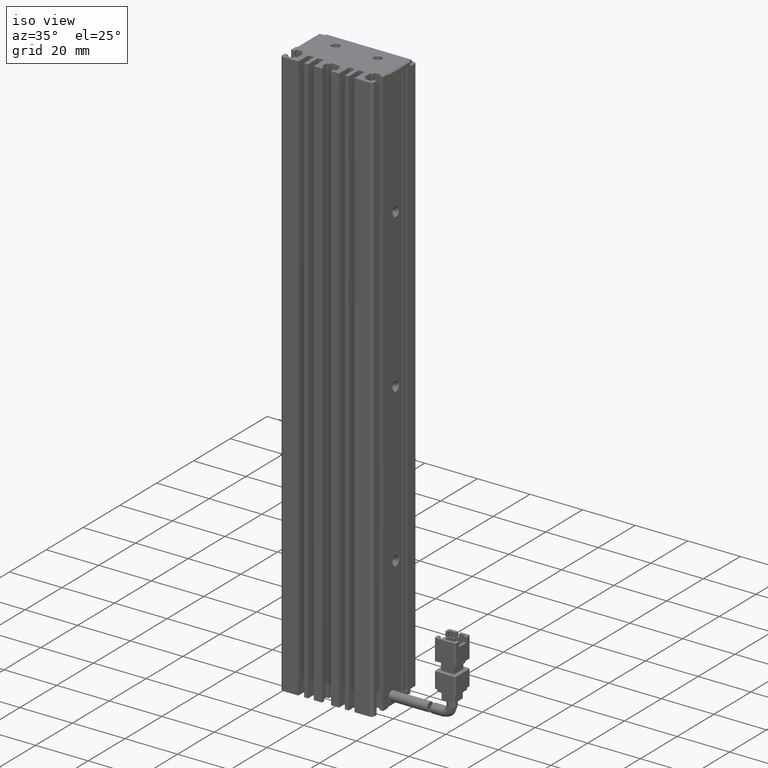
[diagram: clean part render]
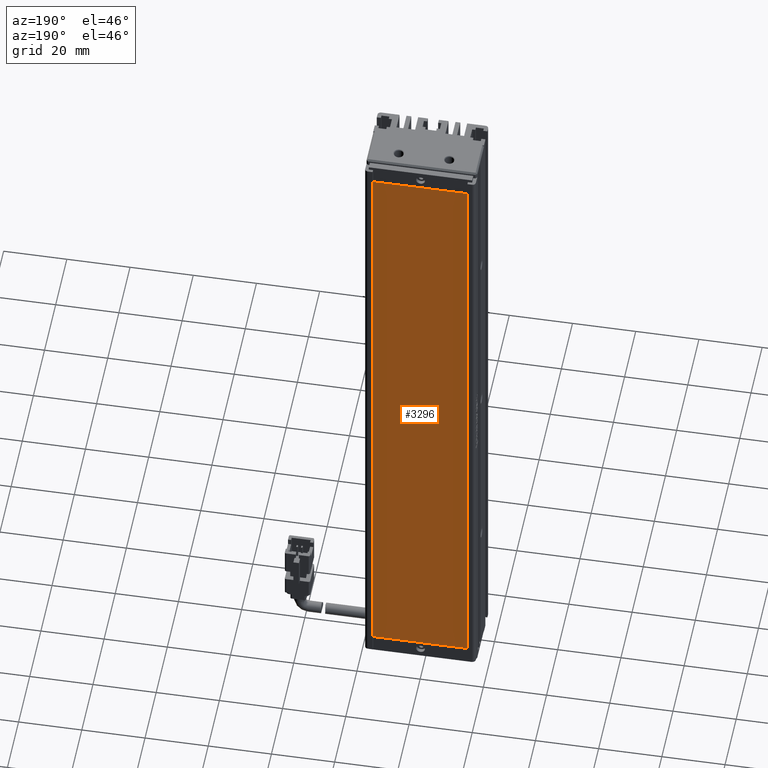
[diagram: tour spotlight — one face highlighted and labeled with its STEP entity id]
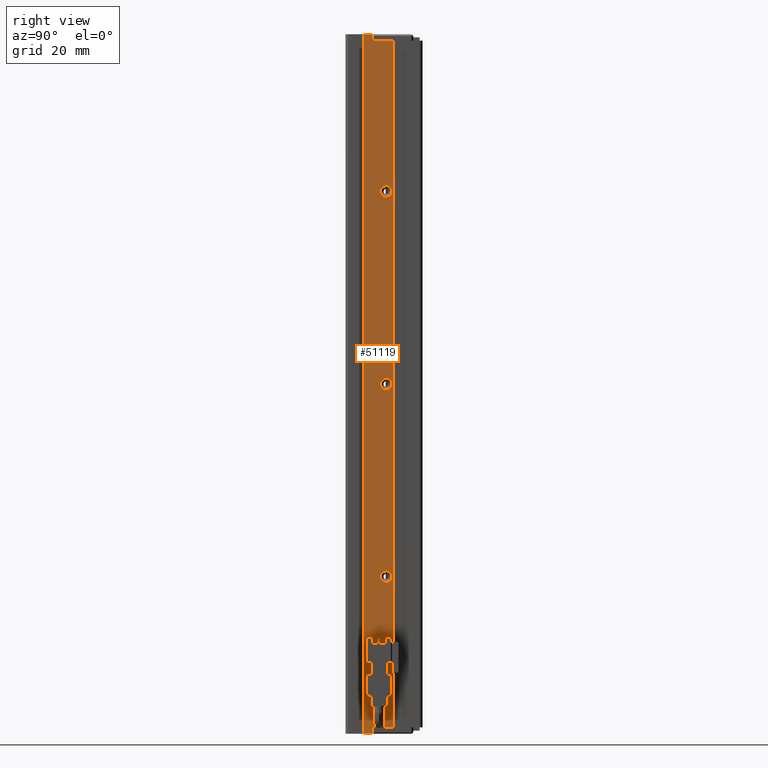
[diagram: tour spotlight — one face highlighted and labeled with its STEP entity id]
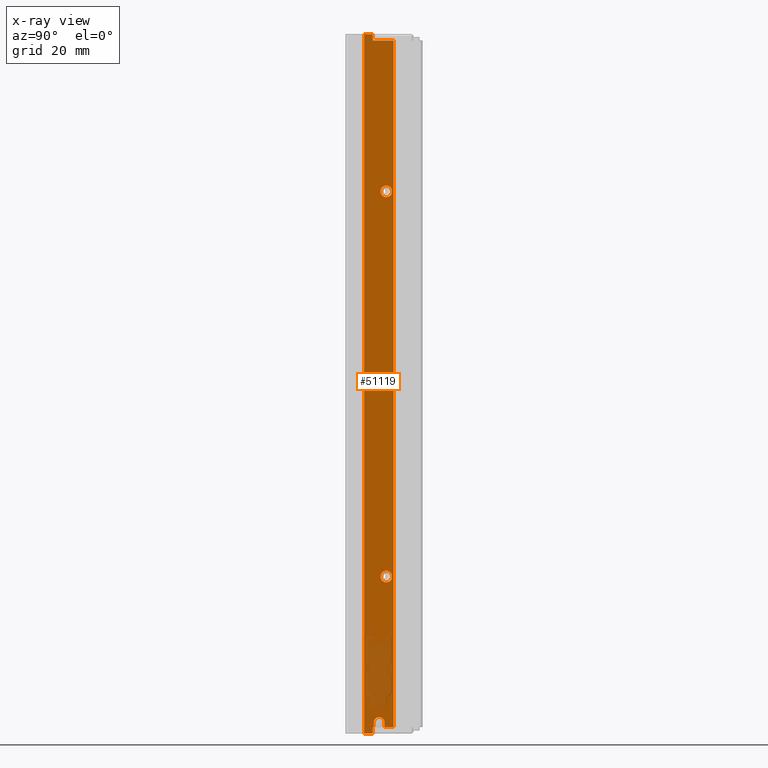
[diagram: x-ray of the same camera — body ghosted, this tour face saturated]
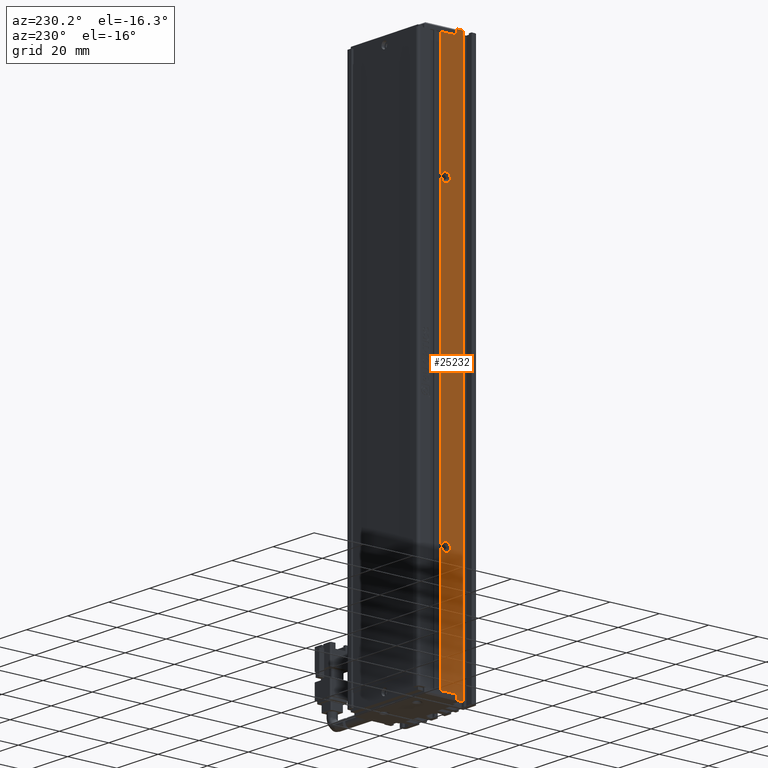
[diagram: tour spotlight — one face highlighted and labeled with its STEP entity id]
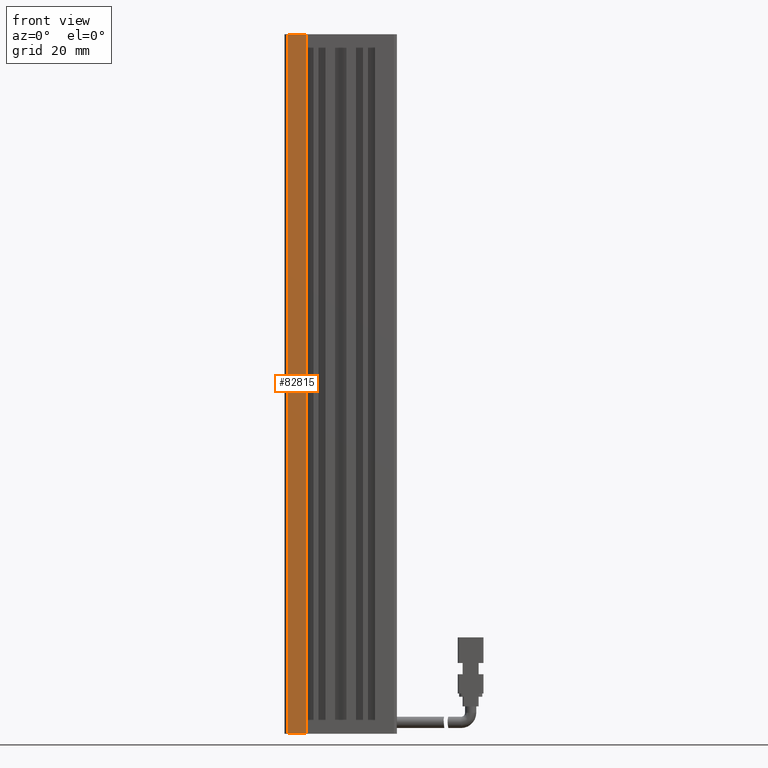
[diagram: tour spotlight — one face highlighted and labeled with its STEP entity id]
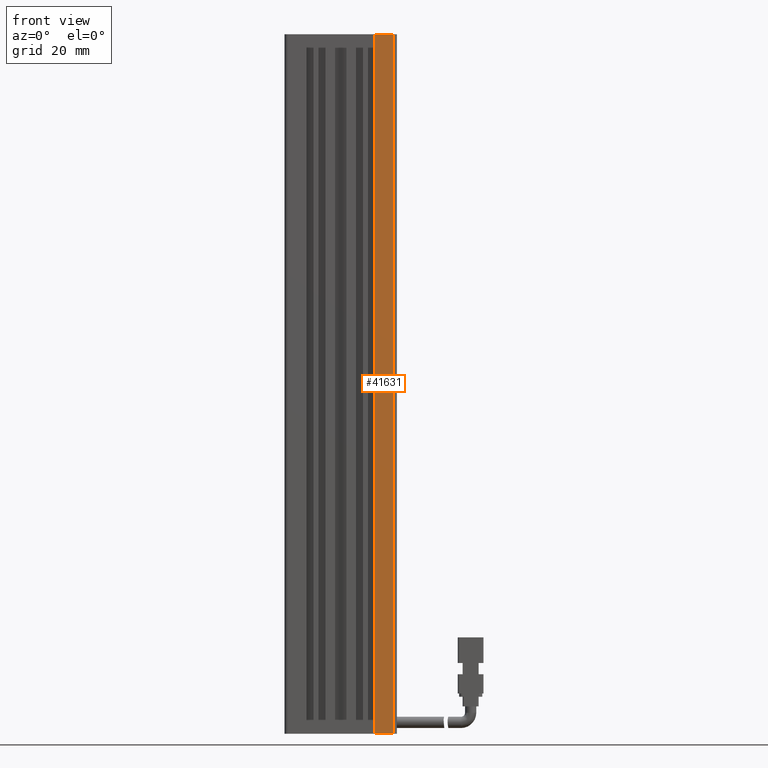
[diagram: tour spotlight — one face highlighted and labeled with its STEP entity id]
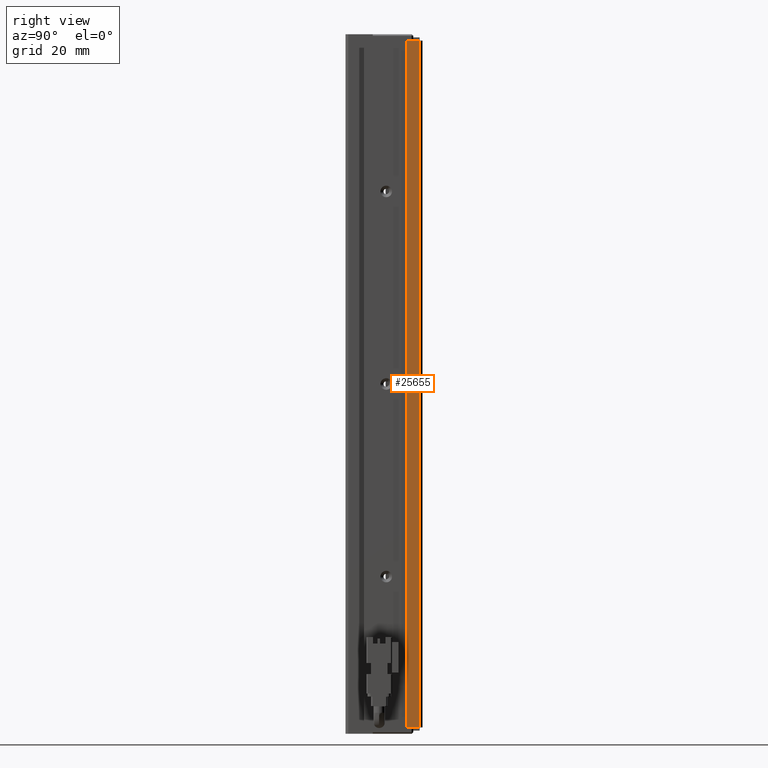
[diagram: tour spotlight — one face highlighted and labeled with its STEP entity id]
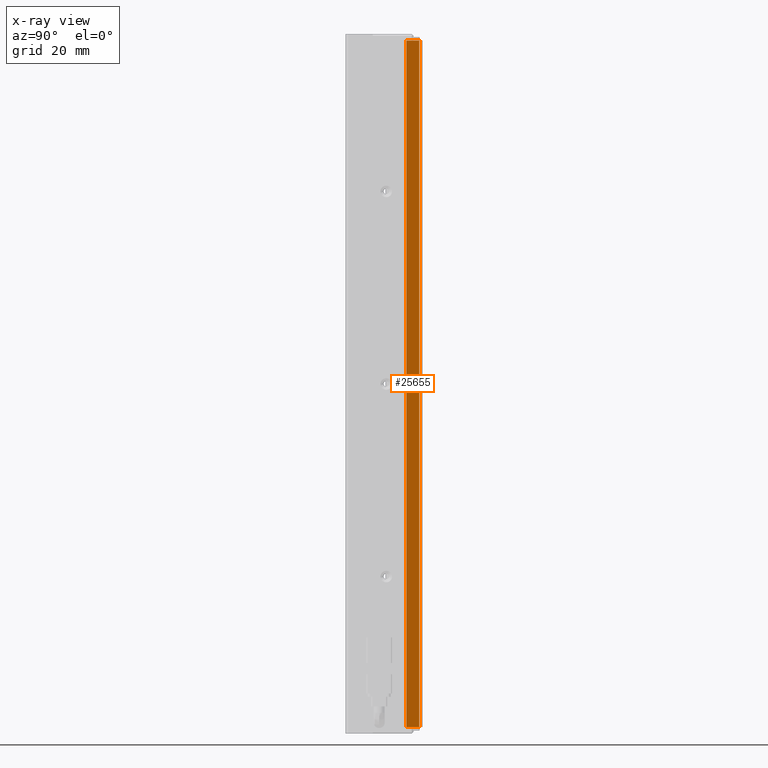
[diagram: x-ray of the same camera — body ghosted, this tour face saturated]
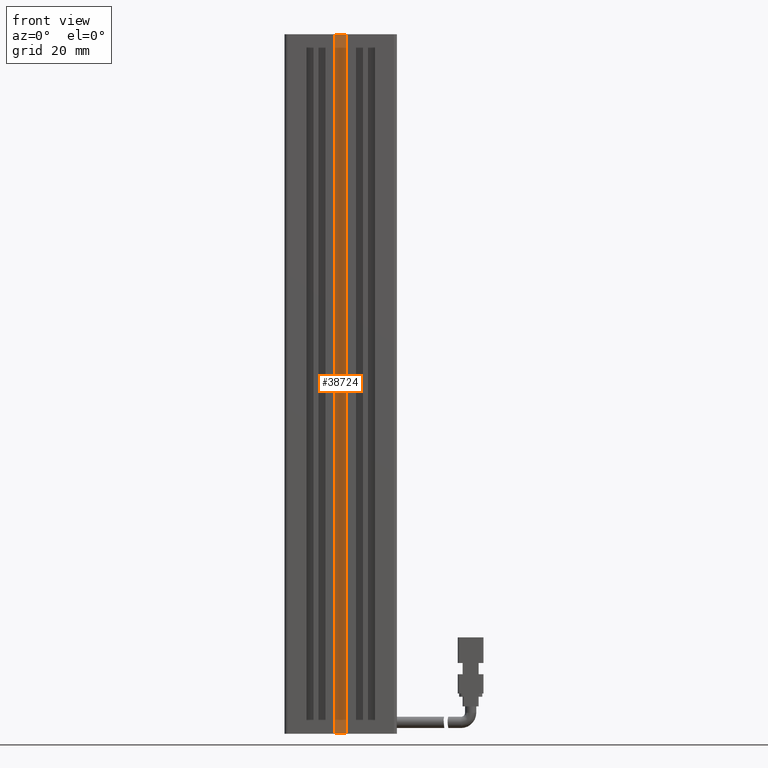
[diagram: tour spotlight — one face highlighted and labeled with its STEP entity id]
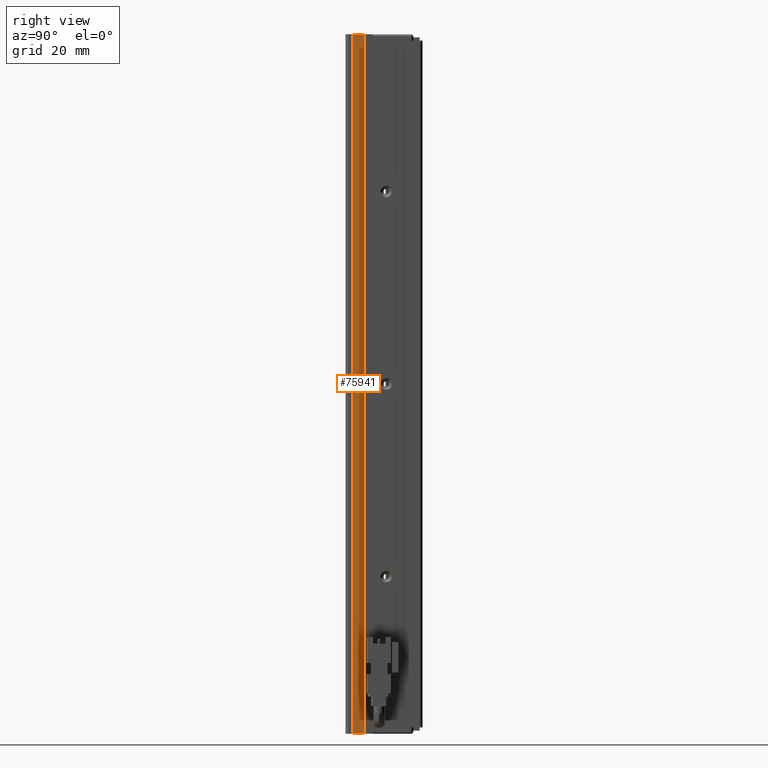
[diagram: tour spotlight — one face highlighted and labeled with its STEP entity id]
A machine part: a face-by-face anatomy tour. The part has 1974 B-rep faces; the first image is the clean iso view, then the 8 largest visible faces are spotlighted one at a time (largest first), each with its STEP entity span.

Face 1 — auxiliary view, entity #3296. In plain terms, the highlighted planar face has unit normal (0, 1, 0).
Definition (entity closure, byte-faithful):
#2015 = EDGE_CURVE ( 'NONE', #41204, #73764, #9818, .T. ) ;
#3296 = ADVANCED_FACE ( 'NONE', ( #42817 ), #13393, .T. ) ;
#4080 = VERTEX_POINT ( 'NONE', #40497 ) ;
#5159 = DIRECTION ( 'NONE',  ( -1.000000000000000000, 0.0000000000000000000, 0.0000000000000000000 ) ) ;
#5628 = LINE ( 'NONE', #34160, #54917 ) ;
#6965 = EDGE_CURVE ( 'NONE', #21765, #41204, #29712, .T. ) ;
#7059 = EDGE_CURVE ( 'NONE', #23355, #21765, #5628, .T. ) ;
#8802 = CARTESIAN_POINT ( 'NONE',  ( 55.92537974683542500, 34.29073232304837400, -217.0000000000000000 ) ) ;
#9818 = LINE ( 'NONE', #45320, #36031 ) ;
#13286 = ORIENTED_EDGE ( 'NONE', *, *, #82121, .T. ) ;
#13393 = PLANE ( 'NONE',  #48536 ) ;
#19254 = EDGE_LOOP ( 'NONE', ( #20772, #55169, #63044, #34372, #13286 ) ) ;
#20772 = ORIENTED_EDGE ( 'NONE', *, *, #25126, .T. ) ;
#21765 = VERTEX_POINT ( 'NONE', #8802 ) ;
#23355 = VERTEX_POINT ( 'NONE', #39516 ) ;
#24402 = DIRECTION ( 'NONE',  ( 0.0000000000000000000, 0.0000000000000000000, 1.000000000000000000 ) ) ;
#25126 = EDGE_CURVE ( 'NONE', #4080, #23355, #65663, .T. ) ;
#29712 = LINE ( 'NONE', #53248, #34128 ) ;
#34128 = VECTOR ( 'NONE', #5159, 1000.000000000000000 ) ;
#34160 = CARTESIAN_POINT ( 'NONE',  ( 55.92537974683542500, 34.29073232304837400, -115.0000000000000000 ) ) ;
#34372 = ORIENTED_EDGE ( 'NONE', *, *, #2015, .T. ) ;
#34614 = DIRECTION ( 'NONE',  ( -0.0003683932681881996800, 0.0000000000000000000, -0.9999999321431976000 ) ) ;
#36031 = VECTOR ( 'NONE', #24402, 1000.000000000000000 ) ;
#39516 = CARTESIAN_POINT ( 'NONE',  ( 55.92537974683542500, 34.29073232304837400, -115.0000000000000000 ) ) ;
#40497 = CARTESIAN_POINT ( 'NONE',  ( 55.96295586274041500, 34.29073232304837400, -13.00000000000001100 ) ) ;
#41204 = VERTEX_POINT ( 'NONE', #70181 ) ;
#42817 = FACE_OUTER_BOUND ( 'NONE', #19254, .T. ) ;
#45320 = CARTESIAN_POINT ( 'NONE',  ( 25.96295586274039000, 34.29073232304837400, -217.0000000000000000 ) ) ;
#48450 = CARTESIAN_POINT ( 'NONE',  ( 55.96295586274041500, 34.29073232304837400, -13.00000000000001100 ) ) ;
#48536 = AXIS2_PLACEMENT_3D ( 'NONE', #48960, #62078, #62971 ) ;
#48960 = CARTESIAN_POINT ( 'NONE',  ( 0.0000000000000000000, 34.29073232304837400, 0.0000000000000000000 ) ) ;
#53248 = CARTESIAN_POINT ( 'NONE',  ( 55.92537974683542500, 34.29073232304837400, -217.0000000000000000 ) ) ;
#54917 = VECTOR ( 'NONE', #83066, 1000.000000000000000 ) ;
#55169 = ORIENTED_EDGE ( 'NONE', *, *, #7059, .T. ) ;
#59143 = VECTOR ( 'NONE', #75699, 1000.000000000000000 ) ;
#62078 = DIRECTION ( 'NONE',  ( 0.0000000000000000000, 1.000000000000000000, 0.0000000000000000000 ) ) ;
#62971 = DIRECTION ( 'NONE',  ( 0.0000000000000000000, -0.0000000000000000000, 1.000000000000000000 ) ) ;
#63044 = ORIENTED_EDGE ( 'NONE', *, *, #6965, .T. ) ;
#65663 = LINE ( 'NONE', #48450, #81978 ) ;
#69821 = CARTESIAN_POINT ( 'NONE',  ( 25.96295586274041500, 34.29073232304837400, -13.00000000000001100 ) ) ;
#70181 = CARTESIAN_POINT ( 'NONE',  ( 25.96295586274039000, 34.29073232304837400, -217.0000000000000000 ) ) ;
#73764 = VERTEX_POINT ( 'NONE', #69821 ) ;
#75699 = DIRECTION ( 'NONE',  ( 1.000000000000000000, 0.0000000000000000000, 0.0000000000000000000 ) ) ;
#76009 = CARTESIAN_POINT ( 'NONE',  ( 25.96295586274041500, 34.29073232304837400, -13.00000000000001100 ) ) ;
#81978 = VECTOR ( 'NONE', #34614, 1000.000000000000100 ) ;
#82121 = EDGE_CURVE ( 'NONE', #73764, #4080, #88686, .T. ) ;
#83066 = DIRECTION ( 'NONE',  ( 0.0000000000000000000, 0.0000000000000000000, -1.000000000000000000 ) ) ;
#88686 = LINE ( 'NONE', #76009, #59143 ) ;

Face 2 — right view, entity #51119. An x-ray twin of the same camera follows (body ghosted, this face saturated) — the face is partly hidden behind the body. In plain terms, the highlighted planar face has unit normal (-1, 0, 0).
Definition (entity closure, byte-faithful):
#1407 = CARTESIAN_POINT ( 'NONE',  ( 58.42537974687635200, 23.69073232304837300, -113.1999999999402500 ) ) ;
#2230 = DIRECTION ( 'NONE',  ( 0.0000000000000000000, 0.0000000000000000000, -1.000000000000000000 ) ) ;
#3864 = EDGE_CURVE ( 'NONE', #48620, #22811, #54658, .T. ) ;
#4555 = DIRECTION ( 'NONE',  ( 0.0000000000000000000, 0.0000000000000000000, -1.000000000000000000 ) ) ;
#5196 = CARTESIAN_POINT ( 'NONE',  ( 58.42537974683542500, 16.79073232304836700, -6.000000000000005300 ) ) ;
#5313 = CARTESIAN_POINT ( 'NONE',  ( 58.42537974687635200, 23.69073232304837300, -115.0000000000000000 ) ) ;
#5547 = EDGE_CURVE ( 'NONE', #55559, #11164, #83137, .T. ) ;
#5744 = EDGE_CURVE ( 'NONE', #84849, #79828, #32259, .T. ) ;
#6272 = EDGE_CURVE ( 'NONE', #25547, #64053, #67223, .T. ) ;
#7129 = CARTESIAN_POINT ( 'NONE',  ( 58.42537974683541800, 19.84073232304836400, -220.4500000000000500 ) ) ;
#9227 = VECTOR ( 'NONE', #50937, 1000.000000000000000 ) ;
#9795 = ORIENTED_EDGE ( 'NONE', *, *, #45579, .T. ) ;
#10103 = CIRCLE ( 'NONE', #39955, 1.800000000059753800 ) ;
#10105 = CARTESIAN_POINT ( 'NONE',  ( 58.42537974681950900, 23.69073232304836900, -53.19999999999937000 ) ) ;
#10208 = VERTEX_POINT ( 'NONE', #29663 ) ;
#11164 = VERTEX_POINT ( 'NONE', #28012 ) ;
#11469 = EDGE_CURVE ( 'NONE', #10208, #85059, #70854, .T. ) ;
#14373 = CARTESIAN_POINT ( 'NONE',  ( 58.42537974683542500, 19.49073232304837000, -6.000000000000005300 ) ) ;
#16026 = DIRECTION ( 'NONE',  ( -0.0000000000000000000, -2.238352872228184200E-015, -1.000000000000000000 ) ) ;
#16860 = CARTESIAN_POINT ( 'NONE',  ( 58.42537974687635200, 23.69073232304837300, -116.8000000000597500 ) ) ;
#16949 = DIRECTION ( 'NONE',  ( 1.000000000000000000, 0.0000000000000000000, 0.0000000000000000000 ) ) ;
#18785 = CARTESIAN_POINT ( 'NONE',  ( 58.42537974683542500, 25.99073232304837700, -8.000000000000007100 ) ) ;
#19202 = CARTESIAN_POINT ( 'NONE',  ( 58.42537974683542500, 16.79073232304836700, -6.000000000000005300 ) ) ;
#20858 = ORIENTED_EDGE ( 'NONE', *, *, #80705, .F. ) ;
#21372 = DIRECTION ( 'NONE',  ( 0.0000000000000000000, 1.000000000000000000, -0.0000000000000000000 ) ) ;
#21565 = EDGE_CURVE ( 'NONE', #38815, #85059, #53934, .T. ) ;
#22158 = EDGE_CURVE ( 'NONE', #22811, #48620, #51715, .T. ) ;
#22207 = VECTOR ( 'NONE', #21372, 1000.000000000000000 ) ;
#22314 = VECTOR ( 'NONE', #16026, 1000.000000000000000 ) ;
#22811 = VERTEX_POINT ( 'NONE', #10105 ) ;
#24179 = EDGE_CURVE ( 'NONE', #38815, #81566, #50658, .T. ) ;
#24286 = CIRCLE ( 'NONE', #50090, 1.800000000059753800 ) ;
#24857 = DIRECTION ( 'NONE',  ( -1.000000000000000000, 0.0000000000000000000, 0.0000000000000000000 ) ) ;
#25544 = LINE ( 'NONE', #72857, #22314 ) ;
#25547 = VERTEX_POINT ( 'NONE', #31490 ) ;
#26605 = ORIENTED_EDGE ( 'NONE', *, *, #21565, .T. ) ;
#26907 = LINE ( 'NONE', #58095, #69637 ) ;
#28012 = CARTESIAN_POINT ( 'NONE',  ( 58.42537974681950900, 23.69073232304836900, -173.1999999999948200 ) ) ;
#28421 = ORIENTED_EDGE ( 'NONE', *, *, #80902, .F. ) ;
#28819 = VERTEX_POINT ( 'NONE', #16860 ) ;
#29388 = FACE_BOUND ( 'NONE', #75960, .T. ) ;
#29663 = CARTESIAN_POINT ( 'NONE',  ( 58.42537974683541800, 23.14073232304837200, -220.4500000000000500 ) ) ;
#30076 = CARTESIAN_POINT ( 'NONE',  ( 58.42537974681950900, 23.69073232304836900, -55.00000000000000700 ) ) ;
#30958 = LINE ( 'NONE', #61187, #32099 ) ;
#30983 = CARTESIAN_POINT ( 'NONE',  ( 58.42537974683542500, 19.49073232304837000, -8.000000000000007100 ) ) ;
#31490 = CARTESIAN_POINT ( 'NONE',  ( 58.42537974683542500, 25.99073232304837700, -222.0000000000000000 ) ) ;
#32099 = VECTOR ( 'NONE', #53865, 1000.000000000000000 ) ;
#32259 = LINE ( 'NONE', #14373, #43266 ) ;
#32813 = DIRECTION ( 'NONE',  ( 1.000000000000000000, 0.0000000000000000000, 0.0000000000000000000 ) ) ;
#34757 = ORIENTED_EDGE ( 'NONE', *, *, #3864, .F. ) ;
#34996 = CARTESIAN_POINT ( 'NONE',  ( 58.42537974683541800, 21.49073232304836600, -220.4500000000000500 ) ) ;
#35153 = DIRECTION ( 'NONE',  ( -0.0000000000000000000, 0.0000000000000000000, 1.000000000000000000 ) ) ;
#36994 = VECTOR ( 'NONE', #88968, 1000.000000000000000 ) ;
#38719 = EDGE_CURVE ( 'NONE', #82405, #38762, #39207, .T. ) ;
#38762 = VERTEX_POINT ( 'NONE', #19202 ) ;
#38815 = VERTEX_POINT ( 'NONE', #74290 ) ;
#39207 = LINE ( 'NONE', #5196, #36994 ) ;
#39722 = EDGE_CURVE ( 'NONE', #10208, #64053, #25544, .T. ) ;
#39955 = AXIS2_PLACEMENT_3D ( 'NONE', #82622, #32813, #82302 ) ;
#40771 = CARTESIAN_POINT ( 'NONE',  ( 58.42537974683542500, 7.083797468354437600, -6.000000000000005300 ) ) ;
#41579 = CARTESIAN_POINT ( 'NONE',  ( 58.42537974683542500, 19.49073232304837000, -221.9999999999999700 ) ) ;
#41745 = DIRECTION ( 'NONE',  ( 1.000000000000000000, 5.687617954022316600E-016, -0.0000000000000000000 ) ) ;
#42342 = CIRCLE ( 'NONE', #67635, 1.800000000005186300 ) ;
#43144 = AXIS2_PLACEMENT_3D ( 'NONE', #59844, #24857, #79001 ) ;
#43190 = LINE ( 'NONE', #84081, #22207 ) ;
#43266 = VECTOR ( 'NONE', #35153, 1000.000000000000000 ) ;
#44103 = ORIENTED_EDGE ( 'NONE', *, *, #24179, .F. ) ;
#44651 = AXIS2_PLACEMENT_3D ( 'NONE', #30076, #65911, #50976 ) ;
#44855 = CARTESIAN_POINT ( 'NONE',  ( 58.42537974681950900, 23.69073232304836900, -55.00000000000000700 ) ) ;
#45579 = EDGE_CURVE ( 'NONE', #71187, #81566, #26907, .T. ) ;
#47334 = CARTESIAN_POINT ( 'NONE',  ( 58.42537974681950900, 23.69073232304836900, -56.80000000000064400 ) ) ;
#48620 = VERTEX_POINT ( 'NONE', #47334 ) ;
#48804 = EDGE_CURVE ( 'NONE', #84849, #64526, #43190, .T. ) ;
#50090 = AXIS2_PLACEMENT_3D ( 'NONE', #5313, #54293, #63395 ) ;
#50658 = LINE ( 'NONE', #76416, #70234 ) ;
#50937 = DIRECTION ( 'NONE',  ( -0.0000000000000000000, -1.000000000000000000, 0.0000000000000000000 ) ) ;
#50976 = DIRECTION ( 'NONE',  ( 0.0000000000000000000, 0.0000000000000000000, -1.000000000000000000 ) ) ;
#50986 = PLANE ( 'NONE',  #43144 ) ;
#51119 = ADVANCED_FACE ( 'NONE', ( #29388, #59044, #85235, #89638 ), #50986, .F. ) ;
#51715 = CIRCLE ( 'NONE', #44651, 1.800000000000634400 ) ;
#52878 = ORIENTED_EDGE ( 'NONE', *, *, #5547, .F. ) ;
#53100 = EDGE_CURVE ( 'NONE', #38762, #79828, #77451, .T. ) ;
#53161 = AXIS2_PLACEMENT_3D ( 'NONE', #71923, #85725, #2230 ) ;
#53865 = DIRECTION ( 'NONE',  ( -0.0000000000000000000, -0.0000000000000000000, -1.000000000000000000 ) ) ;
#53934 = LINE ( 'NONE', #75745, #88885 ) ;
#54293 = DIRECTION ( 'NONE',  ( 1.000000000000000000, 0.0000000000000000000, 0.0000000000000000000 ) ) ;
#54468 = CARTESIAN_POINT ( 'NONE',  ( 58.42537974681950900, 23.69073232304836900, -175.0000000000000000 ) ) ;
#54658 = CIRCLE ( 'NONE', #72204, 1.800000000000634400 ) ;
#55032 = EDGE_LOOP ( 'NONE', ( #26605, #76881, #80970, #81650, #82651, #81305, #76015, #62004, #58967, #20858, #9795, #44103 ) ) ;
#55559 = VERTEX_POINT ( 'NONE', #88781 ) ;
#55854 = CARTESIAN_POINT ( 'NONE',  ( 58.42537974683542500, 19.49073232304837000, -224.0000000000000000 ) ) ;
#57501 = DIRECTION ( 'NONE',  ( -0.0000000000000000000, 0.0000000000000000000, 1.000000000000000000 ) ) ;
#57691 = CARTESIAN_POINT ( 'NONE',  ( 58.42537974683542500, 7.083797468354437600, -222.0000000000000000 ) ) ;
#58095 = CARTESIAN_POINT ( 'NONE',  ( 58.42537974683542500, 19.49073232304837000, -6.000000000000005300 ) ) ;
#58967 = ORIENTED_EDGE ( 'NONE', *, *, #38719, .F. ) ;
#59044 = FACE_BOUND ( 'NONE', #70385, .T. ) ;
#59844 = CARTESIAN_POINT ( 'NONE',  ( 58.42537974683542500, 7.083797468354437600, -6.000000000000005300 ) ) ;
#61187 = CARTESIAN_POINT ( 'NONE',  ( 58.42537974683542500, 25.99073232304837700, -6.000000000000005300 ) ) ;
#61205 = CARTESIAN_POINT ( 'NONE',  ( 58.42537974683542500, 23.14073232304836800, -221.9999999999999700 ) ) ;
#62004 = ORIENTED_EDGE ( 'NONE', *, *, #53100, .F. ) ;
#63395 = DIRECTION ( 'NONE',  ( 0.0000000000000000000, 0.0000000000000000000, -1.000000000000000000 ) ) ;
#64053 = VERTEX_POINT ( 'NONE', #61205 ) ;
#64526 = VERTEX_POINT ( 'NONE', #18785 ) ;
#65911 = DIRECTION ( 'NONE',  ( 1.000000000000000000, 0.0000000000000000000, 0.0000000000000000000 ) ) ;
#66619 = VECTOR ( 'NONE', #89712, 1000.000000000000000 ) ;
#67223 = LINE ( 'NONE', #57691, #9227 ) ;
#67635 = AXIS2_PLACEMENT_3D ( 'NONE', #54468, #81855, #4555 ) ;
#68189 = VECTOR ( 'NONE', #76997, 1000.000000000000000 ) ;
#68691 = ORIENTED_EDGE ( 'NONE', *, *, #70431, .F. ) ;
#69637 = VECTOR ( 'NONE', #57501, 1000.000000000000000 ) ;
#70234 = VECTOR ( 'NONE', #84045, 1000.000000000000000 ) ;
#70385 = EDGE_LOOP ( 'NONE', ( #68691, #28421 ) ) ;
#70431 = EDGE_CURVE ( 'NONE', #28819, #87069, #24286, .T. ) ;
#70471 = ORIENTED_EDGE ( 'NONE', *, *, #22158, .F. ) ;
#70854 = CIRCLE ( 'NONE', #86732, 1.650000000000002100 ) ;
#71105 = CARTESIAN_POINT ( 'NONE',  ( 58.42537974683542500, 19.49073232304837000, -6.000000000000005300 ) ) ;
#71187 = VERTEX_POINT ( 'NONE', #55854 ) ;
#71923 = CARTESIAN_POINT ( 'NONE',  ( 58.42537974681950900, 23.69073232304836900, -175.0000000000000000 ) ) ;
#72204 = AXIS2_PLACEMENT_3D ( 'NONE', #44855, #16949, #79641 ) ;
#72857 = CARTESIAN_POINT ( 'NONE',  ( 58.42537974683542500, 23.14073232304836800, -221.9999999999999700 ) ) ;
#74290 = CARTESIAN_POINT ( 'NONE',  ( 58.42537974683542500, 19.84073232304836400, -221.9999999999999700 ) ) ;
#74735 = LINE ( 'NONE', #90193, #68189 ) ;
#75745 = CARTESIAN_POINT ( 'NONE',  ( 58.42537974683542500, 19.84073232304836800, -221.9999999999999700 ) ) ;
#75960 = EDGE_LOOP ( 'NONE', ( #52878, #83574 ) ) ;
#76015 = ORIENTED_EDGE ( 'NONE', *, *, #5744, .T. ) ;
#76416 = CARTESIAN_POINT ( 'NONE',  ( 58.42537974683542500, 7.083797468354437600, -221.9999999999999700 ) ) ;
#76881 = ORIENTED_EDGE ( 'NONE', *, *, #11469, .F. ) ;
#76997 = DIRECTION ( 'NONE',  ( -0.0000000000000000000, -1.000000000000000000, 0.0000000000000000000 ) ) ;
#77451 = LINE ( 'NONE', #40771, #66619 ) ;
#79001 = DIRECTION ( 'NONE',  ( 0.0000000000000000000, 0.0000000000000000000, 1.000000000000000000 ) ) ;
#79641 = DIRECTION ( 'NONE',  ( 0.0000000000000000000, 0.0000000000000000000, -1.000000000000000000 ) ) ;
#79828 = VERTEX_POINT ( 'NONE', #71105 ) ;
#80705 = EDGE_CURVE ( 'NONE', #71187, #82405, #74735, .T. ) ;
#80902 = EDGE_CURVE ( 'NONE', #87069, #28819, #10103, .T. ) ;
#80970 = ORIENTED_EDGE ( 'NONE', *, *, #39722, .T. ) ;
#81305 = ORIENTED_EDGE ( 'NONE', *, *, #48804, .F. ) ;
#81566 = VERTEX_POINT ( 'NONE', #41579 ) ;
#81650 = ORIENTED_EDGE ( 'NONE', *, *, #6272, .F. ) ;
#81855 = DIRECTION ( 'NONE',  ( 1.000000000000000000, 0.0000000000000000000, 0.0000000000000000000 ) ) ;
#82302 = DIRECTION ( 'NONE',  ( 0.0000000000000000000, 0.0000000000000000000, -1.000000000000000000 ) ) ;
#82405 = VERTEX_POINT ( 'NONE', #85794 ) ;
#82622 = CARTESIAN_POINT ( 'NONE',  ( 58.42537974687635200, 23.69073232304837300, -115.0000000000000000 ) ) ;
#82651 = ORIENTED_EDGE ( 'NONE', *, *, #88749, .F. ) ;
#82710 = DIRECTION ( 'NONE',  ( 0.0000000000000000000, 1.000000000000000000, 0.0000000000000000000 ) ) ;
#83137 = CIRCLE ( 'NONE', #53161, 1.800000000005186300 ) ;
#83574 = ORIENTED_EDGE ( 'NONE', *, *, #90423, .F. ) ;
#84045 = DIRECTION ( 'NONE',  ( -0.0000000000000000000, -1.000000000000000000, 0.0000000000000000000 ) ) ;
#84081 = CARTESIAN_POINT ( 'NONE',  ( 58.42537974683542500, 7.083797468354437600, -8.000000000000007100 ) ) ;
#84849 = VERTEX_POINT ( 'NONE', #30983 ) ;
#85059 = VERTEX_POINT ( 'NONE', #7129 ) ;
#85235 = FACE_OUTER_BOUND ( 'NONE', #55032, .T. ) ;
#85725 = DIRECTION ( 'NONE',  ( 1.000000000000000000, 0.0000000000000000000, 0.0000000000000000000 ) ) ;
#85794 = CARTESIAN_POINT ( 'NONE',  ( 58.42537974683542500, 16.79073232304836700, -224.0000000000000000 ) ) ;
#86732 = AXIS2_PLACEMENT_3D ( 'NONE', #34996, #41745, #82710 ) ;
#87069 = VERTEX_POINT ( 'NONE', #1407 ) ;
#88749 = EDGE_CURVE ( 'NONE', #64526, #25547, #30958, .T. ) ;
#88781 = CARTESIAN_POINT ( 'NONE',  ( 58.42537974681950900, 23.69073232304836900, -176.8000000000051800 ) ) ;
#88885 = VECTOR ( 'NONE', #90158, 1000.000000000000000 ) ;
#88968 = DIRECTION ( 'NONE',  ( 0.0000000000000000000, 0.0000000000000000000, 1.000000000000000000 ) ) ;
#89136 = EDGE_LOOP ( 'NONE', ( #34757, #70471 ) ) ;
#89638 = FACE_BOUND ( 'NONE', #89136, .T. ) ;
#89712 = DIRECTION ( 'NONE',  ( 0.0000000000000000000, 1.000000000000000000, -0.0000000000000000000 ) ) ;
#90158 = DIRECTION ( 'NONE',  ( -0.0000000000000000000, -2.238352872228184200E-015, 1.000000000000000000 ) ) ;
#90193 = CARTESIAN_POINT ( 'NONE',  ( 58.42537974683542500, 7.083797468354437600, -224.0000000000000000 ) ) ;
#90423 = EDGE_CURVE ( 'NONE', #11164, #55559, #42342, .T. ) ;

Face 3 — auxiliary view, entity #25232. In plain terms, the highlighted planar face has unit normal (-1, 0, 0).
Definition (entity closure, byte-faithful):
#521 = ORIENTED_EDGE ( 'NONE', *, *, #7124, .T. ) ;
#995 = DIRECTION ( 'NONE',  ( 0.0000000000000000000, 0.0000000000000000000, 1.000000000000000000 ) ) ;
#2187 = ORIENTED_EDGE ( 'NONE', *, *, #41070, .T. ) ;
#2339 = VERTEX_POINT ( 'NONE', #23991 ) ;
#2737 = EDGE_LOOP ( 'NONE', ( #22899, #66081 ) ) ;
#2833 = ORIENTED_EDGE ( 'NONE', *, *, #41659, .T. ) ;
#4250 = VECTOR ( 'NONE', #82570, 1000.000000000000000 ) ;
#4734 = EDGE_CURVE ( 'NONE', #82494, #23253, #7979, .T. ) ;
#4941 = LINE ( 'NONE', #24544, #22440 ) ;
#4978 = VERTEX_POINT ( 'NONE', #73235 ) ;
#7075 = ORIENTED_EDGE ( 'NONE', *, *, #64514, .T. ) ;
#7078 = EDGE_CURVE ( 'NONE', #2339, #8183, #8895, .T. ) ;
#7124 = EDGE_CURVE ( 'NONE', #8212, #2339, #59282, .T. ) ;
#7585 = FACE_BOUND ( 'NONE', #49073, .T. ) ;
#7979 = CIRCLE ( 'NONE', #22505, 1.800000000005186300 ) ;
#8183 = VERTEX_POINT ( 'NONE', #21082 ) ;
#8212 = VERTEX_POINT ( 'NONE', #50840 ) ;
#8895 = LINE ( 'NONE', #40605, #46152 ) ;
#10657 = LINE ( 'NONE', #83609, #59922 ) ;
#12912 = VERTEX_POINT ( 'NONE', #62290 ) ;
#13327 = AXIS2_PLACEMENT_3D ( 'NONE', #76420, #13443, #77334 ) ;
#13362 = DIRECTION ( 'NONE',  ( 0.0000000000000000000, -0.0000000000000000000, -1.000000000000000000 ) ) ;
#13443 = DIRECTION ( 'NONE',  ( 1.000000000000000000, -0.0000000000000000000, -0.0000000000000000000 ) ) ;
#14282 = CARTESIAN_POINT ( 'NONE',  ( 23.42537974683542100, 7.083797468354437600, -222.0000000000000000 ) ) ;
#14358 = VERTEX_POINT ( 'NONE', #47055 ) ;
#14572 = DIRECTION ( 'NONE',  ( -0.0000000000000000000, -1.000000000000000000, 0.0000000000000000000 ) ) ;
#15189 = DIRECTION ( 'NONE',  ( 0.0000000000000000000, 0.0000000000000000000, 1.000000000000000000 ) ) ;
#15915 = VERTEX_POINT ( 'NONE', #35226 ) ;
#16589 = CIRCLE ( 'NONE', #19942, 1.800000000005186300 ) ;
#18008 = AXIS2_PLACEMENT_3D ( 'NONE', #70703, #28443, #995 ) ;
#18113 = DIRECTION ( 'NONE',  ( 0.0000000000000000000, 0.0000000000000000000, 1.000000000000000000 ) ) ;
#18698 = EDGE_CURVE ( 'NONE', #8183, #73816, #21715, .T. ) ;
#19942 = AXIS2_PLACEMENT_3D ( 'NONE', #37052, #23262, #36750 ) ;
#21082 = CARTESIAN_POINT ( 'NONE',  ( 23.42537974683542100, 19.49073232304836600, -224.0000000000000000 ) ) ;
#21243 = ORIENTED_EDGE ( 'NONE', *, *, #18698, .T. ) ;
#21715 = LINE ( 'NONE', #35248, #57909 ) ;
#22440 = VECTOR ( 'NONE', #52501, 1000.000000000000000 ) ;
#22505 = AXIS2_PLACEMENT_3D ( 'NONE', #28370, #35444, #64251 ) ;
#22899 = ORIENTED_EDGE ( 'NONE', *, *, #4734, .T. ) ;
#23253 = VERTEX_POINT ( 'NONE', #76378 ) ;
#23262 = DIRECTION ( 'NONE',  ( 1.000000000000000000, -0.0000000000000000000, -0.0000000000000000000 ) ) ;
#23932 = FACE_BOUND ( 'NONE', #55631, .T. ) ;
#23991 = CARTESIAN_POINT ( 'NONE',  ( 23.42537974683542100, 19.49073232304836600, -222.0000000000000000 ) ) ;
#24544 = CARTESIAN_POINT ( 'NONE',  ( 23.42537974683542100, 7.083797468354437600, -6.000000000000005300 ) ) ;
#25232 = ADVANCED_FACE ( 'NONE', ( #40387, #7585, #73190, #23932 ), #28141, .T. ) ;
#25509 = DIRECTION ( 'NONE',  ( 1.000000000000000000, -0.0000000000000000000, -0.0000000000000000000 ) ) ;
#28141 = PLANE ( 'NONE',  #18008 ) ;
#28145 = AXIS2_PLACEMENT_3D ( 'NONE', #60482, #25509, #46153 ) ;
#28370 = CARTESIAN_POINT ( 'NONE',  ( 23.42537974685134100, 23.69073232304836900, -55.00000000000000700 ) ) ;
#28443 = DIRECTION ( 'NONE',  ( -1.000000000000000000, 0.0000000000000000000, 0.0000000000000000000 ) ) ;
#29645 = CARTESIAN_POINT ( 'NONE',  ( 23.42537974685134100, 23.69073232304836900, -173.1999999999993600 ) ) ;
#29648 = VERTEX_POINT ( 'NONE', #39671 ) ;
#30134 = DIRECTION ( 'NONE',  ( 1.000000000000000000, -0.0000000000000000000, -0.0000000000000000000 ) ) ;
#31193 = VECTOR ( 'NONE', #18113, 1000.000000000000000 ) ;
#31480 = CARTESIAN_POINT ( 'NONE',  ( 23.42537974683542100, 25.99073232304837300, -6.000000000000005300 ) ) ;
#32702 = EDGE_CURVE ( 'NONE', #29648, #83800, #36509, .T. ) ;
#35226 = CARTESIAN_POINT ( 'NONE',  ( 23.42537974683542100, 19.49073232304836600, -8.000000000000007100 ) ) ;
#35248 = CARTESIAN_POINT ( 'NONE',  ( 23.42537974683542100, 7.083797468354437600, -224.0000000000000000 ) ) ;
#35444 = DIRECTION ( 'NONE',  ( 1.000000000000000000, -0.0000000000000000000, -0.0000000000000000000 ) ) ;
#36509 = CIRCLE ( 'NONE', #13327, 1.800000000000634400 ) ;
#36750 = DIRECTION ( 'NONE',  ( 0.0000000000000000000, 0.0000000000000000000, 1.000000000000000000 ) ) ;
#37052 = CARTESIAN_POINT ( 'NONE',  ( 23.42537974685134100, 23.69073232304836900, -55.00000000000000700 ) ) ;
#38934 = CARTESIAN_POINT ( 'NONE',  ( 23.42537974683542100, 16.79073232304837400, -6.000000000000005300 ) ) ;
#39671 = CARTESIAN_POINT ( 'NONE',  ( 23.42537974685134100, 23.69073232304836900, -176.8000000000006400 ) ) ;
#40280 = VERTEX_POINT ( 'NONE', #51723 ) ;
#40387 = FACE_OUTER_BOUND ( 'NONE', #71509, .T. ) ;
#40605 = CARTESIAN_POINT ( 'NONE',  ( 23.42537974683542500, 19.49073232304836600, -6.000000000000005300 ) ) ;
#40753 = EDGE_CURVE ( 'NONE', #12912, #58181, #62265, .T. ) ;
#40989 = ORIENTED_EDGE ( 'NONE', *, *, #40753, .T. ) ;
#41070 = EDGE_CURVE ( 'NONE', #15915, #4978, #10657, .T. ) ;
#41286 = EDGE_CURVE ( 'NONE', #4978, #8212, #55553, .T. ) ;
#41659 = EDGE_CURVE ( 'NONE', #14358, #40280, #4941, .T. ) ;
#42737 = CIRCLE ( 'NONE', #28145, 1.800000000000634400 ) ;
#42913 = DIRECTION ( 'NONE',  ( 0.0000000000000000000, 0.0000000000000000000, 1.000000000000000000 ) ) ;
#46152 = VECTOR ( 'NONE', #13362, 1000.000000000000000 ) ;
#46153 = DIRECTION ( 'NONE',  ( 0.0000000000000000000, 0.0000000000000000000, 1.000000000000000000 ) ) ;
#47055 = CARTESIAN_POINT ( 'NONE',  ( 23.42537974683542100, 16.79073232304837400, -6.000000000000005300 ) ) ;
#48749 = LINE ( 'NONE', #38934, #31193 ) ;
#49073 = EDGE_LOOP ( 'NONE', ( #40989, #56007 ) ) ;
#50840 = CARTESIAN_POINT ( 'NONE',  ( 23.42537974683542100, 25.99073232304837300, -222.0000000000000000 ) ) ;
#51006 = EDGE_CURVE ( 'NONE', #40280, #15915, #71019, .T. ) ;
#51723 = CARTESIAN_POINT ( 'NONE',  ( 23.42537974683542100, 19.49073232304836600, -6.000000000000005300 ) ) ;
#52501 = DIRECTION ( 'NONE',  ( 0.0000000000000000000, 1.000000000000000000, -0.0000000000000000000 ) ) ;
#53827 = EDGE_CURVE ( 'NONE', #73816, #14358, #48749, .T. ) ;
#53939 = CARTESIAN_POINT ( 'NONE',  ( 23.42537974683542100, 19.49073232304836600, -6.000000000000005300 ) ) ;
#54550 = CARTESIAN_POINT ( 'NONE',  ( 23.42537974679449800, 23.69073232304837300, -116.8000000000597500 ) ) ;
#55553 = LINE ( 'NONE', #31480, #71848 ) ;
#55631 = EDGE_LOOP ( 'NONE', ( #7075, #60131 ) ) ;
#56007 = ORIENTED_EDGE ( 'NONE', *, *, #56456, .T. ) ;
#56456 = EDGE_CURVE ( 'NONE', #58181, #12912, #62680, .T. ) ;
#56741 = CARTESIAN_POINT ( 'NONE',  ( 23.42537974683542100, 16.79073232304837400, -224.0000000000000000 ) ) ;
#57355 = DIRECTION ( 'NONE',  ( 1.000000000000000000, -0.0000000000000000000, -0.0000000000000000000 ) ) ;
#57482 = CARTESIAN_POINT ( 'NONE',  ( 23.42537974679449800, 23.69073232304837300, -115.0000000000000000 ) ) ;
#57750 = ORIENTED_EDGE ( 'NONE', *, *, #51006, .T. ) ;
#57909 = VECTOR ( 'NONE', #71034, 1000.000000000000000 ) ;
#58181 = VERTEX_POINT ( 'NONE', #54550 ) ;
#59282 = LINE ( 'NONE', #14282, #89862 ) ;
#59922 = VECTOR ( 'NONE', #63487, 1000.000000000000000 ) ;
#60131 = ORIENTED_EDGE ( 'NONE', *, *, #32702, .T. ) ;
#60482 = CARTESIAN_POINT ( 'NONE',  ( 23.42537974685134100, 23.69073232304836900, -175.0000000000000000 ) ) ;
#61328 = ORIENTED_EDGE ( 'NONE', *, *, #7078, .T. ) ;
#62265 = CIRCLE ( 'NONE', #87048, 1.800000000059753800 ) ;
#62290 = CARTESIAN_POINT ( 'NONE',  ( 23.42537974679449800, 23.69073232304837300, -113.1999999999402500 ) ) ;
#62680 = CIRCLE ( 'NONE', #76563, 1.800000000059753800 ) ;
#63487 = DIRECTION ( 'NONE',  ( 0.0000000000000000000, 1.000000000000000000, 0.0000000000000000000 ) ) ;
#64100 = ORIENTED_EDGE ( 'NONE', *, *, #53827, .T. ) ;
#64251 = DIRECTION ( 'NONE',  ( 0.0000000000000000000, 0.0000000000000000000, 1.000000000000000000 ) ) ;
#64514 = EDGE_CURVE ( 'NONE', #83800, #29648, #42737, .T. ) ;
#66081 = ORIENTED_EDGE ( 'NONE', *, *, #76045, .T. ) ;
#70703 = CARTESIAN_POINT ( 'NONE',  ( 23.42537974683542100, 7.083797468354437600, -6.000000000000005300 ) ) ;
#71019 = LINE ( 'NONE', #53939, #4250 ) ;
#71034 = DIRECTION ( 'NONE',  ( -0.0000000000000000000, -1.000000000000000000, 0.0000000000000000000 ) ) ;
#71509 = EDGE_LOOP ( 'NONE', ( #2833, #57750, #2187, #87419, #521, #61328, #21243, #64100 ) ) ;
#71848 = VECTOR ( 'NONE', #72448, 1000.000000000000000 ) ;
#72448 = DIRECTION ( 'NONE',  ( -0.0000000000000000000, -0.0000000000000000000, -1.000000000000000000 ) ) ;
#73190 = FACE_BOUND ( 'NONE', #2737, .T. ) ;
#73235 = CARTESIAN_POINT ( 'NONE',  ( 23.42537974683542100, 25.99073232304837300, -8.000000000000007100 ) ) ;
#73816 = VERTEX_POINT ( 'NONE', #56741 ) ;
#74117 = CARTESIAN_POINT ( 'NONE',  ( 23.42537974685134100, 23.69073232304836900, -53.19999999999482300 ) ) ;
#76045 = EDGE_CURVE ( 'NONE', #23253, #82494, #16589, .T. ) ;
#76378 = CARTESIAN_POINT ( 'NONE',  ( 23.42537974685134100, 23.69073232304836900, -56.80000000000519100 ) ) ;
#76420 = CARTESIAN_POINT ( 'NONE',  ( 23.42537974685134100, 23.69073232304836900, -175.0000000000000000 ) ) ;
#76563 = AXIS2_PLACEMENT_3D ( 'NONE', #84798, #57355, #42913 ) ;
#77334 = DIRECTION ( 'NONE',  ( 0.0000000000000000000, 0.0000000000000000000, 1.000000000000000000 ) ) ;
#82494 = VERTEX_POINT ( 'NONE', #74117 ) ;
#82570 = DIRECTION ( 'NONE',  ( 0.0000000000000000000, -0.0000000000000000000, -1.000000000000000000 ) ) ;
#83609 = CARTESIAN_POINT ( 'NONE',  ( 23.42537974683542500, 34.99073232304837700, -8.000000000000007100 ) ) ;
#83800 = VERTEX_POINT ( 'NONE', #29645 ) ;
#84798 = CARTESIAN_POINT ( 'NONE',  ( 23.42537974679449800, 23.69073232304837300, -115.0000000000000000 ) ) ;
#87048 = AXIS2_PLACEMENT_3D ( 'NONE', #57482, #30134, #15189 ) ;
#87419 = ORIENTED_EDGE ( 'NONE', *, *, #41286, .T. ) ;
#89862 = VECTOR ( 'NONE', #14572, 1000.000000000000000 ) ;

Face 4 — front view, entity #82815. In plain terms, the highlighted planar face has unit normal (0, -1, 0).
Definition (entity closure, byte-faithful):
#1655 = DIRECTION ( 'NONE',  ( 0.0000000000000000000, -1.000000000000000000, 0.0000000000000000000 ) ) ;
#6357 = EDGE_CURVE ( 'NONE', #61204, #19930, #83482, .T. ) ;
#8875 = EDGE_CURVE ( 'NONE', #74381, #62129, #84376, .T. ) ;
#9145 = VECTOR ( 'NONE', #38306, 1000.000000000000000 ) ;
#14803 = ORIENTED_EDGE ( 'NONE', *, *, #8875, .T. ) ;
#18283 = DIRECTION ( 'NONE',  ( 1.000000000000000000, 0.0000000000000000000, 0.0000000000000000000 ) ) ;
#19930 = VERTEX_POINT ( 'NONE', #65677 ) ;
#20221 = AXIS2_PLACEMENT_3D ( 'NONE', #84137, #1655, #50604 ) ;
#20808 = PLANE ( 'NONE',  #20221 ) ;
#25197 = VECTOR ( 'NONE', #18283, 1000.000000000000000 ) ;
#28001 = DIRECTION ( 'NONE',  ( 0.0000000000000000000, -0.0000000000000000000, -1.000000000000000000 ) ) ;
#30476 = VECTOR ( 'NONE', #80719, 1000.000000000000000 ) ;
#31014 = LINE ( 'NONE', #54769, #60678 ) ;
#32058 = CARTESIAN_POINT ( 'NONE',  ( 40.92537974683542500, 10.99073232304837000, -224.0000000000000000 ) ) ;
#32419 = CARTESIAN_POINT ( 'NONE',  ( 30.22537974683543300, 10.99073232304837000, -6.000000000000005300 ) ) ;
#34373 = EDGE_CURVE ( 'NONE', #62129, #19930, #88522, .T. ) ;
#38306 = DIRECTION ( 'NONE',  ( 1.000000000000000000, 0.0000000000000000000, 0.0000000000000000000 ) ) ;
#45646 = ORIENTED_EDGE ( 'NONE', *, *, #84067, .T. ) ;
#50604 = DIRECTION ( 'NONE',  ( 0.0000000000000000000, -0.0000000000000000000, -1.000000000000000000 ) ) ;
#51214 = ORIENTED_EDGE ( 'NONE', *, *, #34373, .T. ) ;
#54769 = CARTESIAN_POINT ( 'NONE',  ( 24.42537974683542500, 10.99073232304837000, -6.000000000000005300 ) ) ;
#60678 = VECTOR ( 'NONE', #28001, 1000.000000000000000 ) ;
#61204 = VERTEX_POINT ( 'NONE', #76170 ) ;
#62129 = VERTEX_POINT ( 'NONE', #75987 ) ;
#65677 = CARTESIAN_POINT ( 'NONE',  ( 30.22537974683542900, 10.99073232304837000, -6.000000000000005300 ) ) ;
#65895 = ORIENTED_EDGE ( 'NONE', *, *, #6357, .F. ) ;
#66481 = CARTESIAN_POINT ( 'NONE',  ( 40.92537974683542500, 10.99073232304837000, -6.000000000000005300 ) ) ;
#74381 = VERTEX_POINT ( 'NONE', #90492 ) ;
#75987 = CARTESIAN_POINT ( 'NONE',  ( 30.22537974683542900, 10.99073232304837000, -224.0000000000000000 ) ) ;
#76170 = CARTESIAN_POINT ( 'NONE',  ( 24.42537974683542500, 10.99073232304837000, -6.000000000000005300 ) ) ;
#80719 = DIRECTION ( 'NONE',  ( 0.0000000000000000000, 0.0000000000000000000, 1.000000000000000000 ) ) ;
#81860 = EDGE_LOOP ( 'NONE', ( #65895, #45646, #14803, #51214 ) ) ;
#82815 = ADVANCED_FACE ( 'NONE', ( #83999 ), #20808, .T. ) ;
#83482 = LINE ( 'NONE', #66481, #9145 ) ;
#83999 = FACE_OUTER_BOUND ( 'NONE', #81860, .T. ) ;
#84067 = EDGE_CURVE ( 'NONE', #61204, #74381, #31014, .T. ) ;
#84137 = CARTESIAN_POINT ( 'NONE',  ( 40.92537974683542500, 10.99073232304837000, -6.000000000000005300 ) ) ;
#84376 = LINE ( 'NONE', #32058, #25197 ) ;
#88522 = LINE ( 'NONE', #32419, #30476 ) ;
#90492 = CARTESIAN_POINT ( 'NONE',  ( 24.42537974683542500, 10.99073232304837000, -224.0000000000000000 ) ) ;

Face 5 — front view, entity #41631. In plain terms, the highlighted planar face has unit normal (-0, 1, 0).
Definition (entity closure, byte-faithful):
#498 = ORIENTED_EDGE ( 'NONE', *, *, #49371, .F. ) ;
#3509 = DIRECTION ( 'NONE',  ( -7.477256361968982400E-016, 1.000000000000000000, 0.0000000000000000000 ) ) ;
#6865 = VECTOR ( 'NONE', #51089, 1000.000000000000000 ) ;
#7600 = CARTESIAN_POINT ( 'NONE',  ( 51.62537974683542100, 10.99073232304837000, -6.000000000000005300 ) ) ;
#7828 = CARTESIAN_POINT ( 'NONE',  ( 40.92537974683542500, 10.99073232304837000, -224.0000000000000000 ) ) ;
#9524 = EDGE_LOOP ( 'NONE', ( #498, #37161, #83445, #77320 ) ) ;
#10570 = EDGE_CURVE ( 'NONE', #45455, #86108, #31745, .T. ) ;
#24608 = FACE_OUTER_BOUND ( 'NONE', #9524, .T. ) ;
#24726 = EDGE_CURVE ( 'NONE', #79594, #73909, #51627, .T. ) ;
#25281 = LINE ( 'NONE', #80282, #70197 ) ;
#28262 = CARTESIAN_POINT ( 'NONE',  ( 51.62537974683542100, 10.99073232304837000, -224.0000000000000000 ) ) ;
#31745 = LINE ( 'NONE', #33313, #47107 ) ;
#32222 = PLANE ( 'NONE',  #64297 ) ;
#33313 = CARTESIAN_POINT ( 'NONE',  ( 40.92537974683542500, 10.99073232304837000, -6.000000000000005300 ) ) ;
#35838 = CARTESIAN_POINT ( 'NONE',  ( 57.42537974683542500, 10.99073232304837200, -224.0000000000000000 ) ) ;
#37161 = ORIENTED_EDGE ( 'NONE', *, *, #10570, .F. ) ;
#39692 = CARTESIAN_POINT ( 'NONE',  ( 57.42537974683542500, 10.99073232304837200, -6.000000000000005300 ) ) ;
#41631 = ADVANCED_FACE ( 'NONE', ( #24608 ), #32222, .F. ) ;
#45455 = VERTEX_POINT ( 'NONE', #7600 ) ;
#47107 = VECTOR ( 'NONE', #90182, 1000.000000000000000 ) ;
#49371 = EDGE_CURVE ( 'NONE', #86108, #73909, #25281, .T. ) ;
#51089 = DIRECTION ( 'NONE',  ( 0.0000000000000000000, 0.0000000000000000000, 1.000000000000000000 ) ) ;
#51627 = LINE ( 'NONE', #7828, #67877 ) ;
#58116 = CARTESIAN_POINT ( 'NONE',  ( 51.62537974683541400, 10.99073232304837000, -6.000000000000005300 ) ) ;
#58919 = CARTESIAN_POINT ( 'NONE',  ( 40.92537974683542500, 10.99073232304836300, -6.000000000000005300 ) ) ;
#60507 = LINE ( 'NONE', #58116, #6865 ) ;
#64297 = AXIS2_PLACEMENT_3D ( 'NONE', #58919, #3509, #66240 ) ;
#66240 = DIRECTION ( 'NONE',  ( -1.000000000000000000, -7.477256361968982400E-016, 0.0000000000000000000 ) ) ;
#67877 = VECTOR ( 'NONE', #69302, 1000.000000000000000 ) ;
#69302 = DIRECTION ( 'NONE',  ( 1.000000000000000000, 0.0000000000000000000, 0.0000000000000000000 ) ) ;
#70197 = VECTOR ( 'NONE', #72335, 1000.000000000000000 ) ;
#72335 = DIRECTION ( 'NONE',  ( -0.0000000000000000000, -0.0000000000000000000, -1.000000000000000000 ) ) ;
#73909 = VERTEX_POINT ( 'NONE', #35838 ) ;
#77320 = ORIENTED_EDGE ( 'NONE', *, *, #24726, .T. ) ;
#79594 = VERTEX_POINT ( 'NONE', #28262 ) ;
#80282 = CARTESIAN_POINT ( 'NONE',  ( 57.42537974683542500, 10.99073232304837500, -6.000000000000005300 ) ) ;
#80815 = EDGE_CURVE ( 'NONE', #79594, #45455, #60507, .T. ) ;
#83445 = ORIENTED_EDGE ( 'NONE', *, *, #80815, .F. ) ;
#86108 = VERTEX_POINT ( 'NONE', #39692 ) ;
#90182 = DIRECTION ( 'NONE',  ( 1.000000000000000000, 0.0000000000000000000, 0.0000000000000000000 ) ) ;

Face 6 — right view, entity #25655. An x-ray twin of the same camera follows (body ghosted, this face saturated) — the face is partly hidden behind the body. In plain terms, the highlighted planar face has unit normal (-1, 0, 0).
Definition (entity closure, byte-faithful):
#2321 = VERTEX_POINT ( 'NONE', #10894 ) ;
#4016 = ORIENTED_EDGE ( 'NONE', *, *, #83519, .F. ) ;
#4152 = FACE_OUTER_BOUND ( 'NONE', #90563, .T. ) ;
#4361 = LINE ( 'NONE', #62246, #80918 ) ;
#7754 = DIRECTION ( 'NONE',  ( -0.0000000000000000000, -1.000000000000000000, -0.0000000000000000000 ) ) ;
#10894 = CARTESIAN_POINT ( 'NONE',  ( 58.42537974683542500, 29.99073232304837300, -222.0000000000000000 ) ) ;
#18458 = LINE ( 'NONE', #55103, #60150 ) ;
#18992 = EDGE_CURVE ( 'NONE', #74983, #20417, #66521, .T. ) ;
#19508 = DIRECTION ( 'NONE',  ( 0.0000000000000000000, 0.0000000000000000000, 1.000000000000000000 ) ) ;
#20417 = VERTEX_POINT ( 'NONE', #59740 ) ;
#25605 = DIRECTION ( 'NONE',  ( -1.000000000000000000, 0.0000000000000000000, 0.0000000000000000000 ) ) ;
#25655 = ADVANCED_FACE ( 'NONE', ( #4152 ), #32704, .F. ) ;
#30040 = VECTOR ( 'NONE', #60519, 1000.000000000000000 ) ;
#32704 = PLANE ( 'NONE',  #50424 ) ;
#34837 = ORIENTED_EDGE ( 'NONE', *, *, #18992, .T. ) ;
#35064 = CARTESIAN_POINT ( 'NONE',  ( 58.42537974683542500, 33.99073232304837700, -222.0000000000000000 ) ) ;
#40971 = DIRECTION ( 'NONE',  ( -0.0000000000000000000, -0.0000000000000000000, -1.000000000000000000 ) ) ;
#44038 = ORIENTED_EDGE ( 'NONE', *, *, #69486, .F. ) ;
#45479 = LINE ( 'NONE', #53807, #30040 ) ;
#50424 = AXIS2_PLACEMENT_3D ( 'NONE', #81888, #25605, #19508 ) ;
#50624 = VERTEX_POINT ( 'NONE', #35064 ) ;
#51796 = DIRECTION ( 'NONE',  ( -0.0000000000000000000, -1.000000000000000000, -0.0000000000000000000 ) ) ;
#53807 = CARTESIAN_POINT ( 'NONE',  ( 58.42537974683542500, 29.99073232304837700, -6.000000000000005300 ) ) ;
#55103 = CARTESIAN_POINT ( 'NONE',  ( 58.42537974683542500, 33.99073232304837700, -6.000000000000005300 ) ) ;
#59740 = CARTESIAN_POINT ( 'NONE',  ( 58.42537974683542500, 29.99073232304837300, -8.000000000000007100 ) ) ;
#60150 = VECTOR ( 'NONE', #40971, 1000.000000000000000 ) ;
#60519 = DIRECTION ( 'NONE',  ( 0.0000000000000000000, 0.0000000000000000000, 1.000000000000000000 ) ) ;
#62246 = CARTESIAN_POINT ( 'NONE',  ( 58.42537974683542500, 34.99073232304837700, -222.0000000000000000 ) ) ;
#66521 = LINE ( 'NONE', #80447, #68696 ) ;
#68696 = VECTOR ( 'NONE', #51796, 1000.000000000000000 ) ;
#69486 = EDGE_CURVE ( 'NONE', #74983, #50624, #18458, .T. ) ;
#71119 = EDGE_CURVE ( 'NONE', #50624, #2321, #4361, .T. ) ;
#74983 = VERTEX_POINT ( 'NONE', #76593 ) ;
#76593 = CARTESIAN_POINT ( 'NONE',  ( 58.42537974683542500, 33.99073232304837700, -8.000000000000007100 ) ) ;
#80447 = CARTESIAN_POINT ( 'NONE',  ( 58.42537974683542500, 34.99073232304837700, -8.000000000000007100 ) ) ;
#80918 = VECTOR ( 'NONE', #7754, 1000.000000000000000 ) ;
#81888 = CARTESIAN_POINT ( 'NONE',  ( 58.42537974683542500, 7.083797468354437600, -6.000000000000005300 ) ) ;
#83519 = EDGE_CURVE ( 'NONE', #2321, #20417, #45479, .T. ) ;
#85688 = ORIENTED_EDGE ( 'NONE', *, *, #71119, .F. ) ;
#90563 = EDGE_LOOP ( 'NONE', ( #34837, #4016, #85688, #44038 ) ) ;

Face 7 — front view, entity #38724. In plain terms, the highlighted planar face has unit normal (0, 1, 0).
Definition (entity closure, byte-faithful):
#2154 = CARTESIAN_POINT ( 'NONE',  ( 40.92537974683542500, 15.79073232304837000, -6.000000000000005300 ) ) ;
#2727 = VERTEX_POINT ( 'NONE', #88493 ) ;
#2987 = EDGE_CURVE ( 'NONE', #83887, #21718, #5700, .T. ) ;
#5700 = LINE ( 'NONE', #45641, #38490 ) ;
#12189 = CARTESIAN_POINT ( 'NONE',  ( 40.92537974683542500, 15.79073232304837000, -6.000000000000005300 ) ) ;
#21718 = VERTEX_POINT ( 'NONE', #29838 ) ;
#25599 = PLANE ( 'NONE',  #87985 ) ;
#29219 = VECTOR ( 'NONE', #89872, 1000.000000000000000 ) ;
#29838 = CARTESIAN_POINT ( 'NONE',  ( 42.67537974683542500, 15.79073232304837000, -224.0000000000000000 ) ) ;
#32478 = ORIENTED_EDGE ( 'NONE', *, *, #2987, .T. ) ;
#34736 = CARTESIAN_POINT ( 'NONE',  ( 42.67537974683542500, 15.79073232304837000, -6.000000000000005300 ) ) ;
#35215 = ORIENTED_EDGE ( 'NONE', *, *, #87772, .F. ) ;
#36389 = VECTOR ( 'NONE', #56698, 1000.000000000000000 ) ;
#36391 = ORIENTED_EDGE ( 'NONE', *, *, #40240, .F. ) ;
#38490 = VECTOR ( 'NONE', #73072, 1000.000000000000000 ) ;
#38724 = ADVANCED_FACE ( 'NONE', ( #69855 ), #25599, .F. ) ;
#39125 = DIRECTION ( 'NONE',  ( 0.0000000000000000000, -0.0000000000000000000, 1.000000000000000000 ) ) ;
#40240 = EDGE_CURVE ( 'NONE', #71031, #2727, #73582, .T. ) ;
#45641 = CARTESIAN_POINT ( 'NONE',  ( 40.92537974683542500, 15.79073232304837000, -224.0000000000000000 ) ) ;
#47629 = CARTESIAN_POINT ( 'NONE',  ( 39.17537974683542500, 15.79073232304837000, -6.000000000000005300 ) ) ;
#48857 = VECTOR ( 'NONE', #83639, 1000.000000000000000 ) ;
#51040 = LINE ( 'NONE', #34736, #48857 ) ;
#56698 = DIRECTION ( 'NONE',  ( 1.000000000000000000, 0.0000000000000000000, 0.0000000000000000000 ) ) ;
#61192 = DIRECTION ( 'NONE',  ( 0.0000000000000000000, 1.000000000000000000, 0.0000000000000000000 ) ) ;
#69855 = FACE_OUTER_BOUND ( 'NONE', #89519, .T. ) ;
#71031 = VERTEX_POINT ( 'NONE', #47629 ) ;
#73072 = DIRECTION ( 'NONE',  ( 1.000000000000000000, 0.0000000000000000000, 0.0000000000000000000 ) ) ;
#73582 = LINE ( 'NONE', #2154, #36389 ) ;
#79179 = CARTESIAN_POINT ( 'NONE',  ( 39.17537974683542500, 15.79073232304837000, -224.0000000000000000 ) ) ;
#79730 = EDGE_CURVE ( 'NONE', #2727, #21718, #51040, .T. ) ;
#83639 = DIRECTION ( 'NONE',  ( -0.0000000000000000000, 0.0000000000000000000, -1.000000000000000000 ) ) ;
#83887 = VERTEX_POINT ( 'NONE', #79179 ) ;
#87284 = LINE ( 'NONE', #88967, #29219 ) ;
#87772 = EDGE_CURVE ( 'NONE', #83887, #71031, #87284, .T. ) ;
#87985 = AXIS2_PLACEMENT_3D ( 'NONE', #12189, #61192, #39125 ) ;
#87992 = ORIENTED_EDGE ( 'NONE', *, *, #79730, .F. ) ;
#88493 = CARTESIAN_POINT ( 'NONE',  ( 42.67537974683542500, 15.79073232304837000, -6.000000000000005300 ) ) ;
#88967 = CARTESIAN_POINT ( 'NONE',  ( 39.17537974683542500, 15.79073232304837000, -6.000000000000005300 ) ) ;
#89519 = EDGE_LOOP ( 'NONE', ( #87992, #36391, #35215, #32478 ) ) ;
#89872 = DIRECTION ( 'NONE',  ( 0.0000000000000000000, -0.0000000000000000000, 1.000000000000000000 ) ) ;

Face 8 — right view, entity #75941. In plain terms, the highlighted planar face has unit normal (1, 0, -0).
Definition (entity closure, byte-faithful):
#8574 = LINE ( 'NONE', #11497, #80720 ) ;
#10184 = DIRECTION ( 'NONE',  ( 0.0000000000000000000, -0.0000000000000000000, 1.000000000000000000 ) ) ;
#11387 = EDGE_CURVE ( 'NONE', #82316, #24213, #8574, .T. ) ;
#11497 = CARTESIAN_POINT ( 'NONE',  ( 53.62537974683541400, 7.083797468354437600, -224.0000000000000000 ) ) ;
#14609 = EDGE_CURVE ( 'NONE', #54081, #52640, #61805, .T. ) ;
#20126 = CARTESIAN_POINT ( 'NONE',  ( 53.62537974683541400, 16.79073232304837000, -224.0000000000000000 ) ) ;
#21156 = DIRECTION ( 'NONE',  ( -0.0000000000000000000, 0.0000000000000000000, -1.000000000000000000 ) ) ;
#22745 = CARTESIAN_POINT ( 'NONE',  ( 53.62537974683541400, 16.79073232304837000, -6.000000000000005300 ) ) ;
#22755 = ORIENTED_EDGE ( 'NONE', *, *, #58672, .T. ) ;
#24213 = VERTEX_POINT ( 'NONE', #20126 ) ;
#28483 = CARTESIAN_POINT ( 'NONE',  ( 53.62537974683541400, 7.083797468354437600, -6.000000000000005300 ) ) ;
#32929 = EDGE_LOOP ( 'NONE', ( #64741, #61832, #62615, #22755 ) ) ;
#34905 = CARTESIAN_POINT ( 'NONE',  ( 53.62537974683541400, 13.29073232304837200, -6.000000000000005300 ) ) ;
#37514 = AXIS2_PLACEMENT_3D ( 'NONE', #28483, #83867, #21156 ) ;
#42613 = PLANE ( 'NONE',  #37514 ) ;
#43176 = VECTOR ( 'NONE', #63188, 1000.000000000000000 ) ;
#43926 = DIRECTION ( 'NONE',  ( -0.0000000000000000000, 0.0000000000000000000, -1.000000000000000000 ) ) ;
#44776 = CARTESIAN_POINT ( 'NONE',  ( 53.62537974683541400, 16.79073232304837000, -6.000000000000005300 ) ) ;
#45206 = LINE ( 'NONE', #44776, #68156 ) ;
#47667 = DIRECTION ( 'NONE',  ( 0.0000000000000000000, 1.000000000000000000, -0.0000000000000000000 ) ) ;
#52640 = VERTEX_POINT ( 'NONE', #22745 ) ;
#54081 = VERTEX_POINT ( 'NONE', #34905 ) ;
#57441 = CARTESIAN_POINT ( 'NONE',  ( 53.62537974683541400, 13.29073232304837200, -6.000000000000005300 ) ) ;
#58672 = EDGE_CURVE ( 'NONE', #24213, #52640, #45206, .T. ) ;
#61805 = LINE ( 'NONE', #63491, #43176 ) ;
#61832 = ORIENTED_EDGE ( 'NONE', *, *, #73315, .T. ) ;
#62615 = ORIENTED_EDGE ( 'NONE', *, *, #11387, .T. ) ;
#63188 = DIRECTION ( 'NONE',  ( 0.0000000000000000000, 1.000000000000000000, -0.0000000000000000000 ) ) ;
#63491 = CARTESIAN_POINT ( 'NONE',  ( 53.62537974683541400, 7.083797468354437600, -6.000000000000005300 ) ) ;
#63503 = CARTESIAN_POINT ( 'NONE',  ( 53.62537974683541400, 13.29073232304837200, -224.0000000000000000 ) ) ;
#64741 = ORIENTED_EDGE ( 'NONE', *, *, #14609, .F. ) ;
#67990 = LINE ( 'NONE', #57441, #83302 ) ;
#68156 = VECTOR ( 'NONE', #10184, 1000.000000000000000 ) ;
#73315 = EDGE_CURVE ( 'NONE', #54081, #82316, #67990, .T. ) ;
#74657 = FACE_OUTER_BOUND ( 'NONE', #32929, .T. ) ;
#75941 = ADVANCED_FACE ( 'NONE', ( #74657 ), #42613, .T. ) ;
#80720 = VECTOR ( 'NONE', #47667, 1000.000000000000000 ) ;
#82316 = VERTEX_POINT ( 'NONE', #63503 ) ;
#83302 = VECTOR ( 'NONE', #43926, 1000.000000000000000 ) ;
#83867 = DIRECTION ( 'NONE',  ( 1.000000000000000000, 0.0000000000000000000, -0.0000000000000000000 ) ) ;